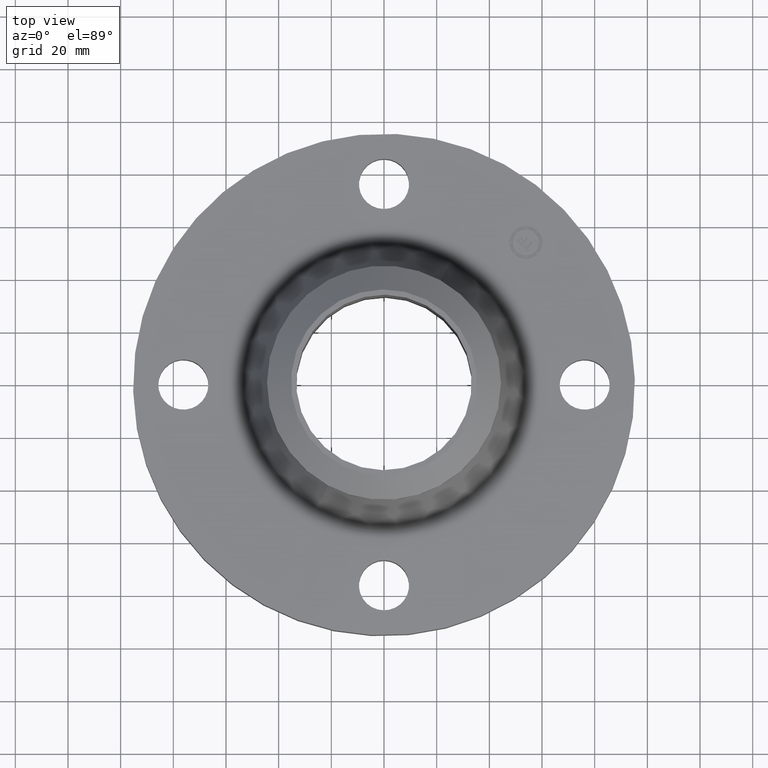
[diagram: clean part render]
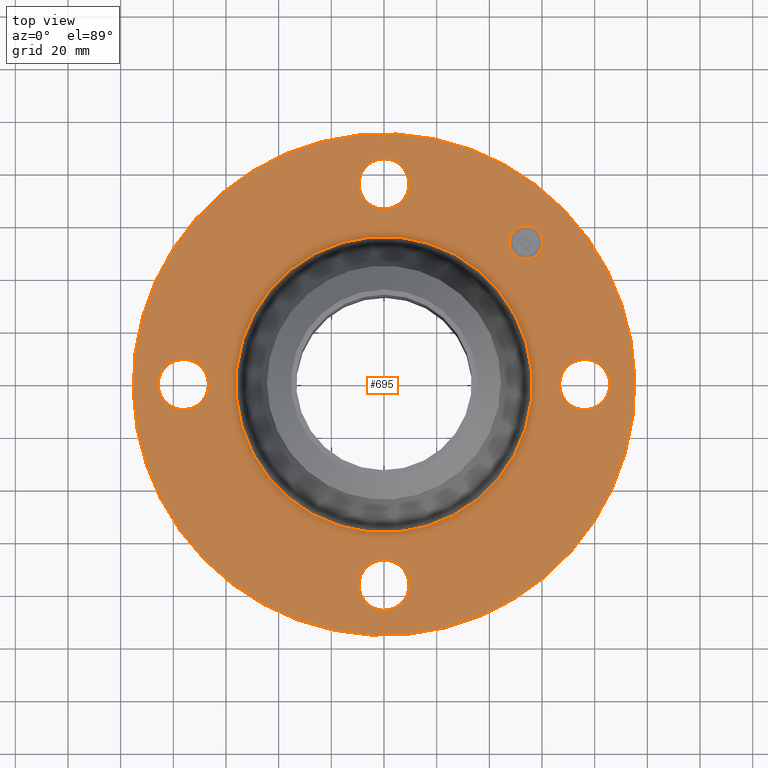
[diagram: same view with one face highlighted and labeled with its STEP entity id]
A machine part, top view. The second image highlights one B-rep face of the part: STEP entity #695.
In plain terms, the highlighted planar face has unit normal (0, 0, -1).
Its self-contained STEP definition (entity closure, byte-faithful):
#65=AXIS2_PLACEMENT_3D('Circle Axis2P3D',#63,#64,$) ;
#82=AXIS2_PLACEMENT_3D('Circle Axis2P3D',#80,#81,$) ;
#115=AXIS2_PLACEMENT_3D('Circle Axis2P3D',#113,#114,$) ;
#139=AXIS2_PLACEMENT_3D('Circle Axis2P3D',#137,#138,$) ;
#156=AXIS2_PLACEMENT_3D('Circle Axis2P3D',#154,#155,$) ;
#191=AXIS2_PLACEMENT_3D('Circle Axis2P3D',#189,#190,$) ;
#540=AXIS2_PLACEMENT_3D('Circle Axis2P3D',#538,#539,$) ;
#552=AXIS2_PLACEMENT_3D('Circle Axis2P3D',#550,#551,$) ;
#583=AXIS2_PLACEMENT_3D('Circle Axis2P3D',#581,#582,$) ;
#595=AXIS2_PLACEMENT_3D('Circle Axis2P3D',#593,#594,$) ;
#626=AXIS2_PLACEMENT_3D('Circle Axis2P3D',#624,#625,$) ;
#638=AXIS2_PLACEMENT_3D('Circle Axis2P3D',#636,#637,$) ;
#651=AXIS2_PLACEMENT_3D('Plane Axis2P3D',#648,#649,#650) ;
#679=AXIS2_PLACEMENT_3D('Circle Axis2P3D',#677,#678,$) ;
#688=AXIS2_PLACEMENT_3D('Circle Axis2P3D',#686,#687,$) ;
#46=CARTESIAN_POINT('Vertex',(2.6709065393,0.179784576977,0.880000000004)) ;
#60=CARTESIAN_POINT('Vertex',(3.32909346072,-0.179784576977,0.880000000004)) ;
#63=CARTESIAN_POINT('Axis2P3D Location',(3.00000000001,0.,0.880000000004)) ;
#80=CARTESIAN_POINT('Axis2P3D Location',(3.00000000001,0.,0.880000000004)) ;
#110=CARTESIAN_POINT('Vertex',(-1.79784576977,-3.2909346071,0.880000000004)) ;
#113=CARTESIAN_POINT('Axis2P3D Location',(0.,0.,0.880000000004)) ;
#117=CARTESIAN_POINT('Vertex',(1.79784576977,3.2909346071,0.880000000004)) ;
#137=CARTESIAN_POINT('Axis2P3D Location',(0.,0.,0.880000000004)) ;
#154=CARTESIAN_POINT('Axis2P3D Location',(0.,0.,0.880000000004)) ;
#158=CARTESIAN_POINT('Vertex',(1.06204313035,1.94405691004,0.880000000004)) ;
#160=CARTESIAN_POINT('Vertex',(-1.06204313035,-1.94405691004,0.880000000004)) ;
#189=CARTESIAN_POINT('Axis2P3D Location',(0.,0.,0.880000000004)) ;
#528=CARTESIAN_POINT('Vertex',(-0.179784576977,2.6709065393,0.880000000004)) ;
#535=CARTESIAN_POINT('Vertex',(0.179784576977,3.32909346072,0.880000000004)) ;
#538=CARTESIAN_POINT('Axis2P3D Location',(-5.51091059619E-016,3.00000000001,0.880000000004)) ;
#550=CARTESIAN_POINT('Axis2P3D Location',(-5.51091059619E-016,3.00000000001,0.880000000004)) ;
#571=CARTESIAN_POINT('Vertex',(-2.6709065393,-0.179784576977,0.880000000004)) ;
#578=CARTESIAN_POINT('Vertex',(-3.32909346072,0.179784576977,0.880000000004)) ;
#581=CARTESIAN_POINT('Axis2P3D Location',(-3.00000000001,-3.67394039746E-016,0.880000000004)) ;
#593=CARTESIAN_POINT('Axis2P3D Location',(-3.00000000001,-3.67394039746E-016,0.880000000004)) ;
#614=CARTESIAN_POINT('Vertex',(0.179784576977,-2.6709065393,0.880000000004)) ;
#621=CARTESIAN_POINT('Vertex',(-0.179784576977,-3.32909346072,0.880000000004)) ;
#624=CARTESIAN_POINT('Axis2P3D Location',(-3.7578544923E-016,-3.00000000001,0.880000000004)) ;
#636=CARTESIAN_POINT('Axis2P3D Location',(-3.7578544923E-016,-3.00000000001,0.880000000004)) ;
#648=CARTESIAN_POINT('Axis2P3D Location',(0.,3.75000000001,0.880000000004)) ;
#677=CARTESIAN_POINT('Axis2P3D Location',(2.12132034357,2.12132034357,0.880000000004)) ;
#681=CARTESIAN_POINT('Vertex',(1.94631141522,2.29632927191,0.880000000004)) ;
#683=CARTESIAN_POINT('Vertex',(2.29632927191,1.94631141522,0.880000000004)) ;
#686=CARTESIAN_POINT('Axis2P3D Location',(2.12132034357,2.12132034357,0.880000000004)) ;
#64=DIRECTION('Axis2P3D Direction',(0.,-0.,-0.0393700787402)) ;
#81=DIRECTION('Axis2P3D Direction',(0.,-0.,-0.0393700787402)) ;
#114=DIRECTION('Axis2P3D Direction',(0.,0.,-0.0393700787402)) ;
#138=DIRECTION('Axis2P3D Direction',(0.,0.,-0.0393700787402)) ;
#155=DIRECTION('Axis2P3D Direction',(0.,0.,-0.0393700787402)) ;
#190=DIRECTION('Axis2P3D Direction',(0.,0.,-0.0393700787402)) ;
#539=DIRECTION('Axis2P3D Direction',(0.,0.,-0.0393700787402)) ;
#551=DIRECTION('Axis2P3D Direction',(0.,0.,-0.0393700787402)) ;
#582=DIRECTION('Axis2P3D Direction',(-0.,0.,-0.0393700787402)) ;
#594=DIRECTION('Axis2P3D Direction',(-0.,0.,-0.0393700787402)) ;
#625=DIRECTION('Axis2P3D Direction',(0.,-0.,-0.0393700787402)) ;
#637=DIRECTION('Axis2P3D Direction',(0.,-0.,-0.0393700787402)) ;
#649=DIRECTION('Axis2P3D Direction',(0.,0.,-0.0393700787402)) ;
#650=DIRECTION('Axis2P3D XDirection',(0.0393700787402,0.,0.)) ;
#678=DIRECTION('Axis2P3D Direction',(0.,0.,-0.0393700787402)) ;
#687=DIRECTION('Axis2P3D Direction',(0.,0.,-0.0393700787402)) ;
#654=ORIENTED_EDGE('',*,*,#141,.F.) ;
#655=ORIENTED_EDGE('',*,*,#119,.F.) ;
#658=ORIENTED_EDGE('',*,*,#67,.T.) ;
#659=ORIENTED_EDGE('',*,*,#84,.T.) ;
#662=ORIENTED_EDGE('',*,*,#193,.T.) ;
#663=ORIENTED_EDGE('',*,*,#162,.T.) ;
#666=ORIENTED_EDGE('',*,*,#640,.T.) ;
#667=ORIENTED_EDGE('',*,*,#628,.T.) ;
#670=ORIENTED_EDGE('',*,*,#597,.T.) ;
#671=ORIENTED_EDGE('',*,*,#585,.T.) ;
#674=ORIENTED_EDGE('',*,*,#554,.T.) ;
#675=ORIENTED_EDGE('',*,*,#542,.T.) ;
#692=ORIENTED_EDGE('',*,*,#685,.T.) ;
#693=ORIENTED_EDGE('',*,*,#690,.T.) ;
#660=FACE_BOUND('',#657,.T.) ;
#664=FACE_BOUND('',#661,.T.) ;
#668=FACE_BOUND('',#665,.T.) ;
#672=FACE_BOUND('',#669,.T.) ;
#676=FACE_BOUND('',#673,.T.) ;
#694=FACE_BOUND('',#691,.T.) ;
#695=ADVANCED_FACE('PartBody',(#656,#660,#664,#668,#672,#676,#694),#652,.F.) ;
#66=CIRCLE('generated circle',#65,0.375000000002) ;
#83=CIRCLE('generated circle',#82,0.375000000002) ;
#116=CIRCLE('generated circle',#115,3.75000000002) ;
#140=CIRCLE('generated circle',#139,3.75000000002) ;
#157=CIRCLE('generated circle',#156,2.21524104336) ;
#192=CIRCLE('generated circle',#191,2.21524104336) ;
#541=CIRCLE('generated circle',#540,0.375000000002) ;
#553=CIRCLE('generated circle',#552,0.375000000002) ;
#584=CIRCLE('generated circle',#583,0.375000000001) ;
#596=CIRCLE('generated circle',#595,0.375000000001) ;
#627=CIRCLE('generated circle',#626,0.375000000002) ;
#639=CIRCLE('generated circle',#638,0.375000000002) ;
#680=CIRCLE('generated circle',#679,0.247500000001) ;
#689=CIRCLE('generated circle',#688,0.247500000001) ;
#67=EDGE_CURVE('',#47,#61,#66,.T.) ;
#84=EDGE_CURVE('',#61,#47,#83,.T.) ;
#119=EDGE_CURVE('',#111,#118,#116,.T.) ;
#141=EDGE_CURVE('',#118,#111,#140,.T.) ;
#162=EDGE_CURVE('',#159,#161,#157,.T.) ;
#193=EDGE_CURVE('',#161,#159,#192,.T.) ;
#542=EDGE_CURVE('',#529,#536,#541,.T.) ;
#554=EDGE_CURVE('',#536,#529,#553,.T.) ;
#585=EDGE_CURVE('',#572,#579,#584,.T.) ;
#597=EDGE_CURVE('',#579,#572,#596,.T.) ;
#628=EDGE_CURVE('',#615,#622,#627,.T.) ;
#640=EDGE_CURVE('',#622,#615,#639,.T.) ;
#685=EDGE_CURVE('',#682,#684,#680,.T.) ;
#690=EDGE_CURVE('',#684,#682,#689,.T.) ;
#653=EDGE_LOOP('',(#654,#655)) ;
#657=EDGE_LOOP('',(#658,#659)) ;
#661=EDGE_LOOP('',(#662,#663)) ;
#665=EDGE_LOOP('',(#666,#667)) ;
#669=EDGE_LOOP('',(#670,#671)) ;
#673=EDGE_LOOP('',(#674,#675)) ;
#691=EDGE_LOOP('',(#692,#693)) ;
#656=FACE_OUTER_BOUND('',#653,.T.) ;
#652=PLANE('',#651) ;
#47=VERTEX_POINT('',#46) ;
#61=VERTEX_POINT('',#60) ;
#111=VERTEX_POINT('',#110) ;
#118=VERTEX_POINT('',#117) ;
#159=VERTEX_POINT('',#158) ;
#161=VERTEX_POINT('',#160) ;
#529=VERTEX_POINT('',#528) ;
#536=VERTEX_POINT('',#535) ;
#572=VERTEX_POINT('',#571) ;
#579=VERTEX_POINT('',#578) ;
#615=VERTEX_POINT('',#614) ;
#622=VERTEX_POINT('',#621) ;
#682=VERTEX_POINT('',#681) ;
#684=VERTEX_POINT('',#683) ;